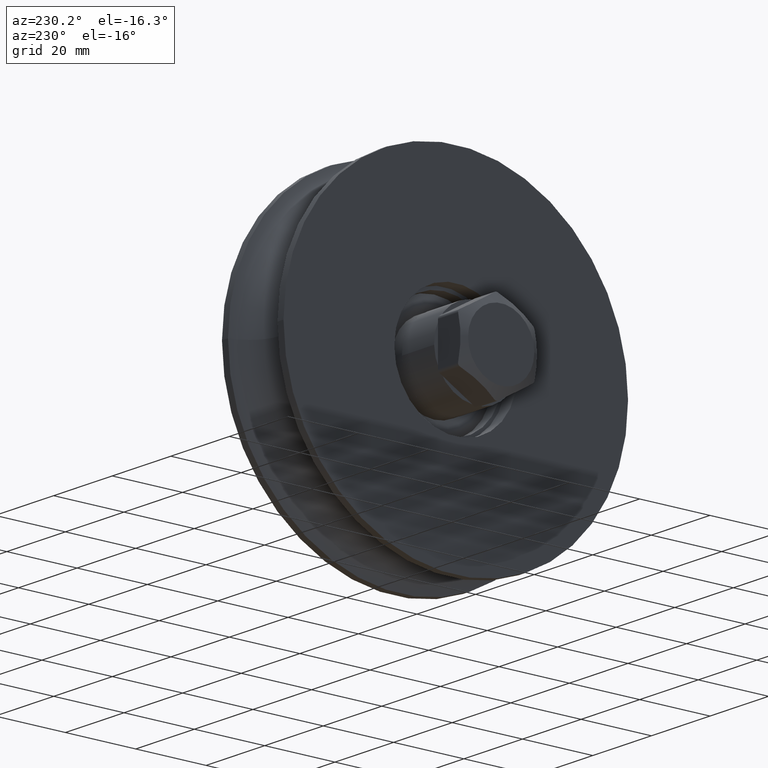
[diagram: clean part render]
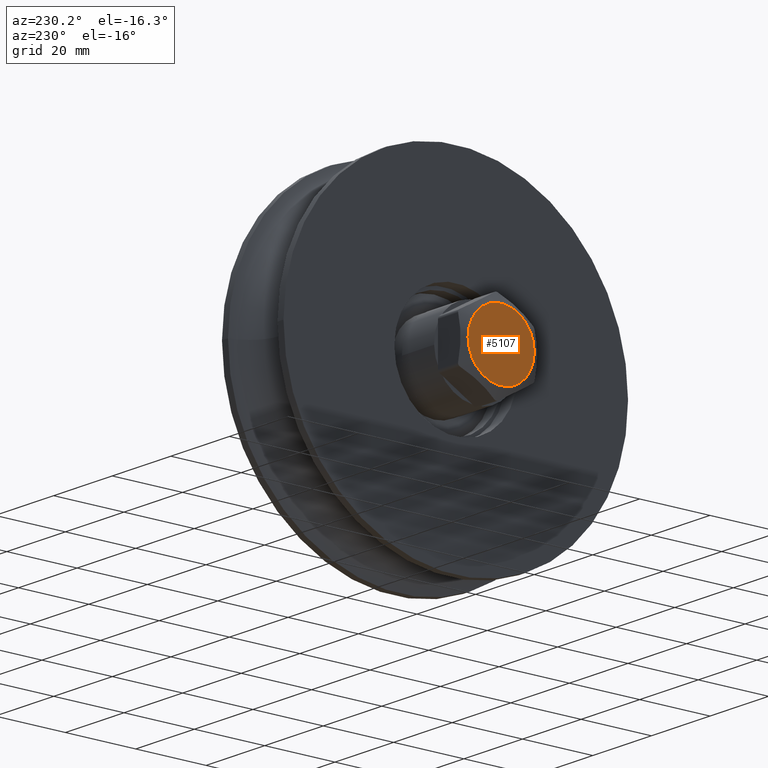
[diagram: same view with one face highlighted and labeled with its STEP entity id]
A machine part, auxiliary view. The second image highlights one B-rep face of the part: STEP entity #5107.
In plain terms, the highlighted planar face has unit normal (-1, 0, 0).
Its self-contained STEP definition (entity closure, byte-faithful):
#1383 = EDGE_LOOP ( 'NONE', ( #12307 ) ) ;
#1645 = EDGE_CURVE ( 'NONE', #8580, #8580, #3766, .T. ) ;
#2697 = DIRECTION ( 'NONE',  ( -0.000000000000000000, -1.000000000000000000, -0.000000000000000000 ) ) ;
#2737 = CARTESIAN_POINT ( 'NONE',  ( 0.000000000000000000, 79.99999999999998579, 0.000000000000000000 ) ) ;
#2975 = DIRECTION ( 'NONE',  ( 0.000000000000000000, 1.000000000000000000, 0.000000000000000000 ) ) ;
#3253 = FACE_OUTER_BOUND ( 'NONE', #1383, .T. ) ;
#3750 = DIRECTION ( 'NONE',  ( 0.000000000000000000, 0.000000000000000000, -1.000000000000000000 ) ) ;
#3766 = CIRCLE ( 'NONE', #9304, 9.418026266155768766 ) ;
#5107 = ADVANCED_FACE ( 'NONE', ( #3253 ), #8192, .T. ) ;
#7630 = CARTESIAN_POINT ( 'NONE',  ( 0.000000000000000000, 79.99999999999998579, -9.418026266155768766 ) ) ;
#8192 = PLANE ( 'NONE',  #10513 ) ;
#8242 = CARTESIAN_POINT ( 'NONE',  ( 0.000000000000000000, 79.99999999999998579, 0.000000000000000000 ) ) ;
#8580 = VERTEX_POINT ( 'NONE', #7630 ) ;
#9304 = AXIS2_PLACEMENT_3D ( 'NONE', #2737, #2697, #3750 ) ;
#10513 = AXIS2_PLACEMENT_3D ( 'NONE', #8242, #2975, #11440 ) ;
#11440 = DIRECTION ( 'NONE',  ( 0.000000000000000000, -0.000000000000000000, 1.000000000000000000 ) ) ;
#12307 = ORIENTED_EDGE ( 'NONE', *, *, #1645, .F. ) ;